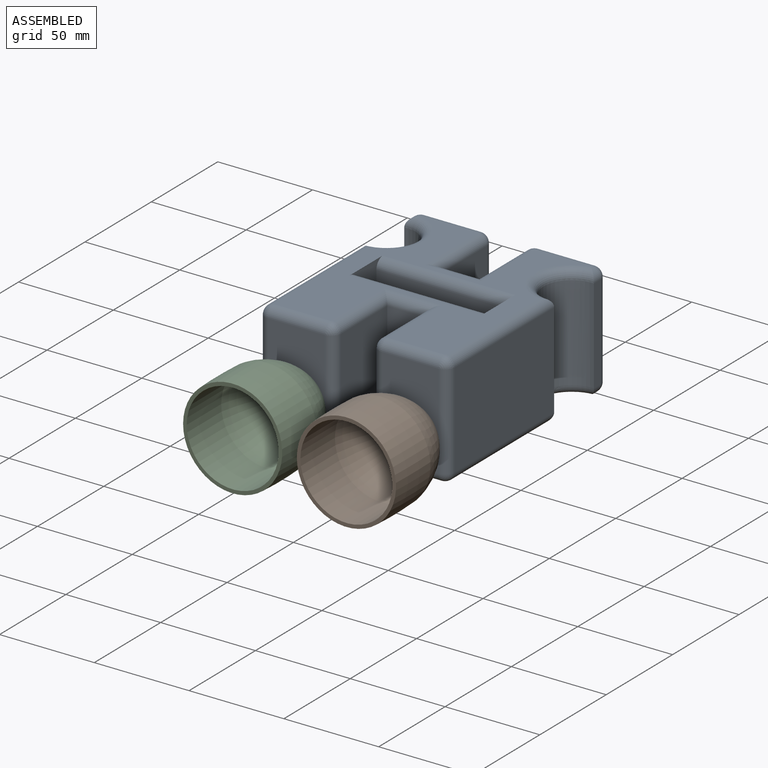
[diagram: assembled view]
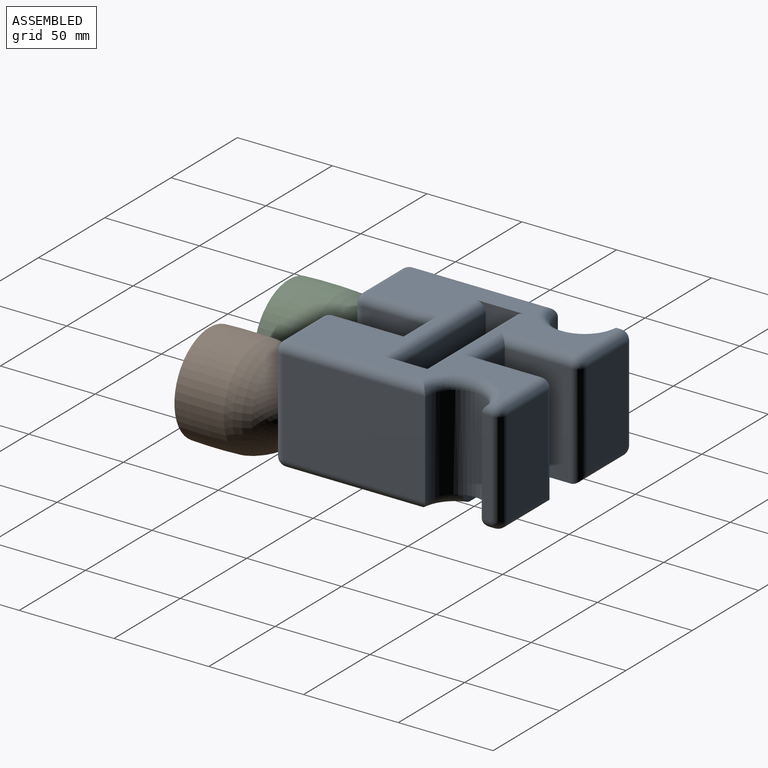
[diagram: assembled view, second angle]
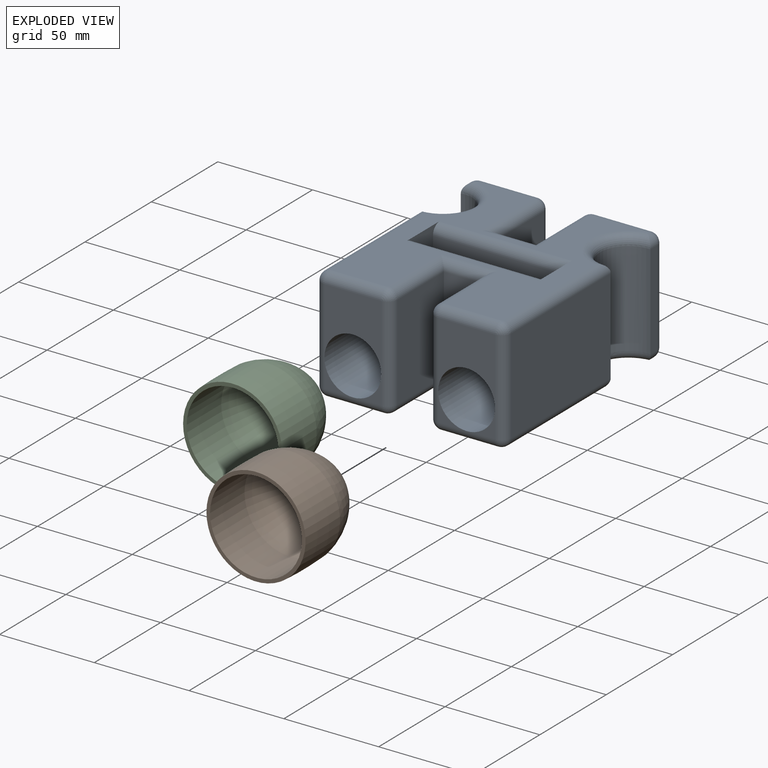
[diagram: exploded view]
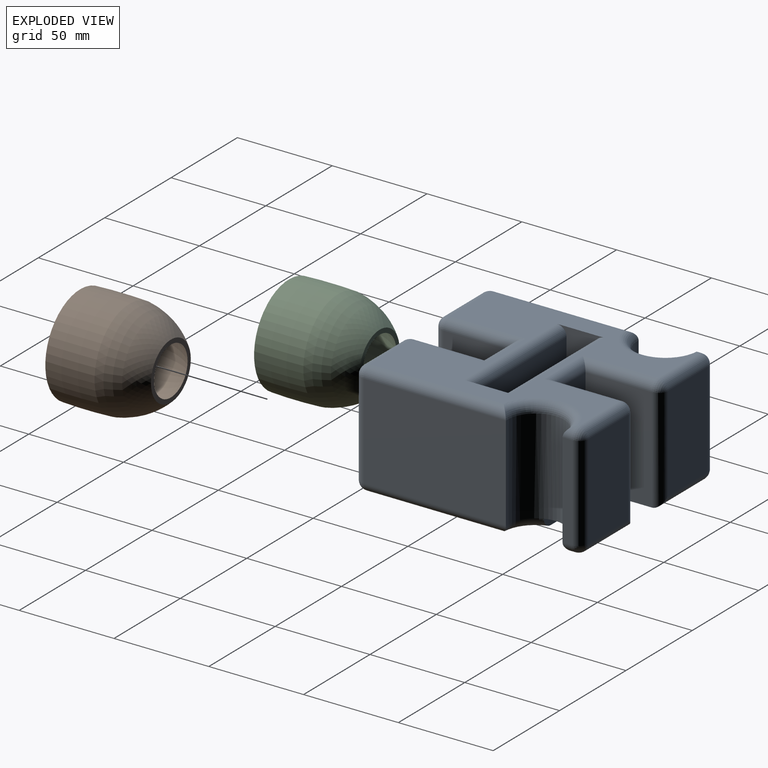
[diagram: exploded view, second angle]
ASSEMBLY  parts=3 mates=2
PART A: 92 faces, bbox 101.6x60x120.4 mm
  f0: plane 15x15mm, normal (0,0,-1), area 48.3mm2, adj f30,f55,f65
  f1: plane 15x15mm, normal (0,0,-1), area 48.3mm2, adj f30,f65,f66
  f2: plane 15x15mm, normal (0,0,-1), area 48.3mm2, adj f29,f80,f85
  f3: plane 15x15mm, normal (0,0,-1), area 48.3mm2, adj f29,f85,f86
  f4: plane 90x84.45mm, normal (0,1,0), area 5911mm2, adj f13,f14,f15,f33,f35,f50,f54,f65
  f5: plane 35x13.55mm, normal (0,1,0), area 339mm2, adj f13,f36,f53,f59,f60
  f6: plane 50x20mm, normal (0,0,-1), area 1000mm2, adj f7,f21,f71,f76
  f7: plane 50x35mm, normal (-1,0,0), area 1750mm2, adj f6,f74,f79,f80
  f8: plane 35x30mm, normal (0,0,-1), area 696.6mm2, adj f29,f80,f81,f86
  f9: plane 75x50mm, normal (1,0,0), area 3750mm2, adj f10,f82,f86,f88
  f10: cylinder r=15mm len=50mm, axis (0,1,0), area 2472.2mm2, adj f9,f11,f34,f53,f78,f89
  f11: plane 50x5.09mm, normal (1,0,0), area 254.5mm2, adj f10,f60,f69,f75
  f12: plane 50x30mm, normal (0,0,1), area 1500mm2, adj f58,f59,f68,f69
  f13: plane 55x35mm, normal (-1,0,0), area 1865mm2, adj f4,f5,f14,f34,f35,f36,f57,f58
  f14: plane 55x20mm, normal (0,0,1), area 1100mm2, adj f4,f13,f15,f52
  f15: plane 55x35mm, normal (1,0,0), area 1865mm2, adj f4,f14,f23,f31,f32,f33,f45,f49
  f16: plane 50x30mm, normal (0,0,1), area 1500mm2, adj f39,f42,f44,f45
  f17: plane 50x5.09mm, normal (-1,0,0), area 254.5mm2, adj f18,f38,f39,f43
  f18: cylinder r=15mm len=50mm, axis (0,1,0), area 2472.2mm2, adj f17,f19,f31,f37,f46,f50
  f19: plane 75x50mm, normal (-1,0,0), area 3750mm2, adj f18,f48,f54,f55
  f20: plane 35x30mm, normal (0,0,-1), area 696.6mm2, adj f30,f55,f56,f66
  f21: plane 50x35mm, normal (1,0,0), area 1750mm2, adj f6,f66,f67,f73
  f22: plane 110x90mm, normal (0,-1,0), area 4798.7mm2, adj f24,f26,f43,f44,f46,f48,f49,f52
  f23: plane 35x13.55mm, normal (0,1,0), area 339mm2, adj f15,f32,f37,f38,f42
  f24: plane 25.86x25mm, normal (1,0,0), area 398.6mm2, adj f22,f25,f27,f30,f90,f91
  f25: plane 70x45mm, normal (0,0,1), area 2273.4mm2, adj f24,f26,f28,f29,f30,f90
  f26: plane 25.86x25mm, normal (-1,0,0), area 398.6mm2, adj f22,f25,f27,f29,f90,f91
  f27: plane 90x50mm, normal (0,0,-1), area 3687.1mm2, adj f24,f26,f28,f29,f30,f91
  f28: plane 37.64x15mm, normal (0,-1,0), area 564.6mm2, adj f25,f27,f29,f30
  f29: cylinder r=15mm len=67.5mm, axis (0,0,-1), area 5767.6mm2, adj f2,f3,f8,f25,f26,f27,f28
  f30: cylinder r=15mm len=67.5mm, axis (0,0,-1), area 5767.6mm2, adj f0,f1,f20,f24,f25,f27,f28
  f31: plane 25.32x12mm, normal (0,1,0), area 291.1mm2, adj f15,f18,f32,f33
  f32: plane 25.32x5mm, normal (0,0,-1), area 120.7mm2, adj f15,f23,f31,f37
  f33: plane 24.89x5mm, normal (0,0,1), area 118.7mm2, adj f4,f15,f31,f50
  f34: plane 25.32x12mm, normal (0,1,0), area 291.1mm2, adj f10,f13,f35,f36
  f35: plane 24.89x5mm, normal (0,0,1), area 118.7mm2, adj f4,f13,f34,f89
  f36: plane 25.32x5mm, normal (0,0,-1), area 120.7mm2, adj f5,f13,f34,f53
  f37: torus R=20mm, axis (0,-1,0), area 149.9mm2, adj f18,f23,f32,f38
  f38: cylinder r=5mm len=5.09mm, axis (0,0,-1), area 26mm2, adj f17,f23,f37,f40
  f39: cylinder r=5mm len=50mm, axis (0,-1,0), area 392.7mm2, adj f16,f17,f40,f41
  f40: sphere r=5mm, area 39.3mm2, adj f38,f39,f42
  f41: sphere r=5mm, area 39.3mm2, adj f39,f43,f44
  f42: cylinder r=5mm len=35mm, axis (-1,0,0), area 260.6mm2, adj f16,f23,f40,f45
  f43: cylinder r=5mm len=5.09mm, axis (0,0,1), area 26mm2, adj f17,f22,f41,f46
  f44: cylinder r=5mm len=30mm, axis (1,0,0), area 235.6mm2, adj f16,f22,f41,f47
  f45: cylinder r=5mm len=55mm, axis (0,1,0), area 417.7mm2, adj f15,f16,f42,f47
  f46: torus R=20mm, axis (0,-1,0), area 404.6mm2, adj f18,f22,f43,f48
  f47: sphere r=5mm, area 39.3mm2, adj f44,f45,f49
  f48: cylinder r=5mm len=75mm, axis (0,0,1), area 575mm2, adj f19,f22,f46,f51
  f49: cylinder r=5mm len=40mm, axis (0,0,-1), area 289.2mm2, adj f15,f22,f47,f52
  f50: torus R=20mm, axis (0,-1,0), area 158.2mm2, adj f4,f18,f33,f54
  f51: sphere r=5mm, area 39.3mm2, adj f48,f55,f56
  f52: cylinder r=5mm len=30mm, axis (1,0,0), area 185.6mm2, adj f14,f22,f49,f57
  f53: torus R=20mm, axis (0,-1,0), area 149.9mm2, adj f5,f10,f36,f60
  f54: cylinder r=5mm len=75mm, axis (0,0,-1), area 575mm2, adj f4,f19,f50,f61
  f55: cylinder r=5mm len=50mm, axis (0,1,0), area 392.7mm2, adj f0,f19,f20,f51,f61
  f56: cylinder r=5mm len=30mm, axis (-1,0,0), area 235.6mm2, adj f20,f22,f51,f62
  f57: cylinder r=5mm len=40mm, axis (0,0,1), area 289.2mm2, adj f13,f22,f52,f63
  f58: cylinder r=5mm len=55mm, axis (0,1,0), area 417.7mm2, adj f12,f13,f59,f63
  f59: cylinder r=5mm len=35mm, axis (-1,0,0), area 260.6mm2, adj f5,f12,f58,f64
  f60: cylinder r=5mm len=5.09mm, axis (0,0,1), area 26mm2, adj f5,f11,f53,f64
  f61: sphere r=5mm, area 39.3mm2, adj f54,f55,f65
  f62: sphere r=5mm, area 39.3mm2, adj f56,f66,f67
  f63: sphere r=5mm, area 39.3mm2, adj f57,f58,f68
  f64: sphere r=5mm, area 39.3mm2, adj f59,f60,f69
  f65: cylinder r=5mm len=30mm, axis (1,0,0), area 235.6mm2, adj f0,f1,f4,f61,f70
  f66: cylinder r=5mm len=50mm, axis (0,-1,0), area 392.7mm2, adj f1,f20,f21,f62,f70
  f67: cylinder r=5mm len=40mm, axis (0,0,-1), area 289.2mm2, adj f21,f22,f62,f71
  f68: cylinder r=5mm len=30mm, axis (1,0,0), area 235.6mm2, adj f12,f22,f63,f72
  f69: cylinder r=5mm len=50mm, axis (0,1,0), area 392.7mm2, adj f11,f12,f64,f72
  f70: sphere r=5mm, area 39.3mm2, adj f65,f66,f73
  f71: cylinder r=5mm len=30mm, axis (-1,0,0), area 185.6mm2, adj f6,f22,f67,f74
  f72: sphere r=5mm, area 39.3mm2, adj f68,f69,f75
  f73: cylinder r=5mm len=40mm, axis (0,0,1), area 289.2mm2, adj f4,f21,f70,f76
  f74: cylinder r=5mm len=40mm, axis (0,0,1), area 289.2mm2, adj f7,f22,f71,f77
  f75: cylinder r=5mm len=5.09mm, axis (0,0,-1), area 26mm2, adj f11,f22,f72,f78
  f76: cylinder r=5mm len=30mm, axis (1,0,0), area 185.6mm2, adj f4,f6,f73,f79
  f77: sphere r=5mm, area 39.3mm2, adj f74,f80,f81
  f78: torus R=20mm, axis (0,-1,0), area 404.6mm2, adj f10,f22,f75,f82
  f79: cylinder r=5mm len=40mm, axis (0,0,-1), area 289.2mm2, adj f4,f7,f76,f83
  f80: cylinder r=5mm len=50mm, axis (0,-1,0), area 392.7mm2, adj f2,f7,f8,f77,f83
  f81: cylinder r=5mm len=30mm, axis (-1,0,0), area 235.6mm2, adj f8,f22,f77,f84
  f82: cylinder r=5mm len=75mm, axis (0,0,-1), area 575mm2, adj f9,f22,f78,f84
  f83: sphere r=5mm, area 39.3mm2, adj f79,f80,f85
  f84: sphere r=5mm, area 39.3mm2, adj f81,f82,f86
  f85: cylinder r=5mm len=30mm, axis (1,0,0), area 235.6mm2, adj f2,f3,f4,f83,f87
  f86: cylinder r=5mm len=50mm, axis (0,-1,0), area 392.7mm2, adj f3,f8,f9,f84,f87
  f87: sphere r=5mm, area 39.3mm2, adj f85,f86,f88
  f88: cylinder r=5mm len=75mm, axis (0,0,1), area 575mm2, adj f4,f9,f87,f89
  f89: torus R=20mm, axis (0,-1,0), area 158.2mm2, adj f4,f10,f35,f88
  f90: cylinder r=5mm len=70mm, axis (-1,0,0), area 549.8mm2, adj f22,f24,f25,f26
  f91: cylinder r=5mm len=70mm, axis (1,0,0), area 549.8mm2, adj f22,f24,f26,f27
PART B: 6 faces, bbox 52.9x52.9x47.9 mm
  f0: revolved ~52.93x52.93mm, area 4303.3mm2, adj f1,f5
  f1: revolved ~52.3x52.3mm, area 3415.7mm2, adj f0,f2
  f2: plane 30x30mm, normal (0,0,-1), area 205.9mm2, adj f1,f3
  f3: revolved ~48.5x48.5mm, area 3087mm2, adj f2,f4
  f4: cylinder r=24.25mm len=48.5mm, axis (0,0,-1), area 3957.6mm2, adj f3,f5
  f5: plane 52.3x52.3mm, normal (0,0,1), area 300.5mm2, adj f0,f4
PART C: same geometry as B
PLACE A rot(axis=(-1,0,0),90deg) t=(-67.97,-71.37,-78.1)mm
PLACE B rot(axis=(1,0,0),90deg) t=(-40.93,-154.07,-58.1)mm
PLACE C rot(axis=(1,0,0),90deg) t=(-100.93,-154.07,-58.1)mm
MATE fastened C.f4 <-> A.f30  axis (0,1,0) through (-96.01,-132.13,-58.1)mm
MATE fastened B.f4 <-> A.f29  axis (0,1,0) through (-36.01,-132.13,-58.1)mm
